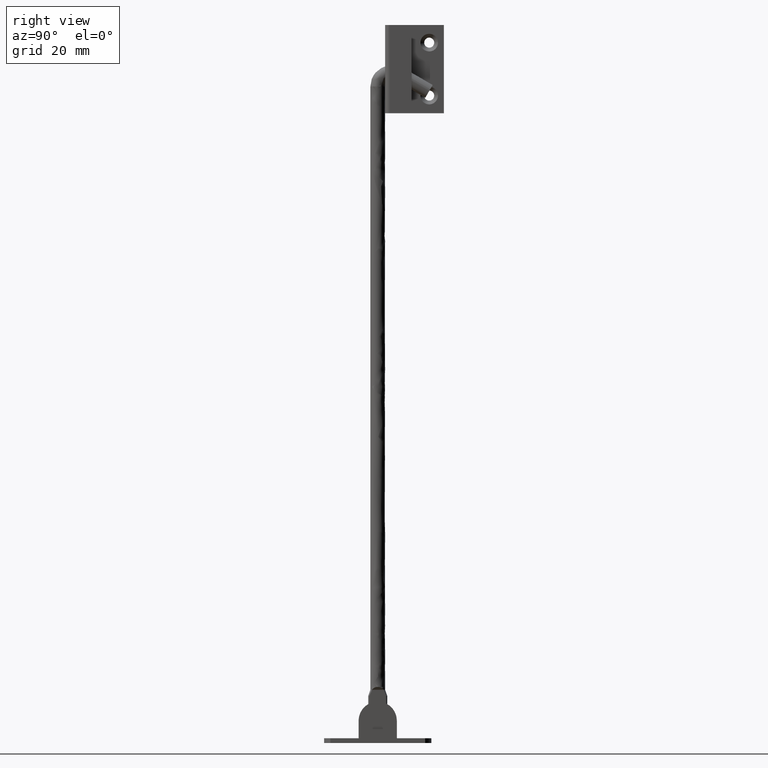
[diagram: clean part render]
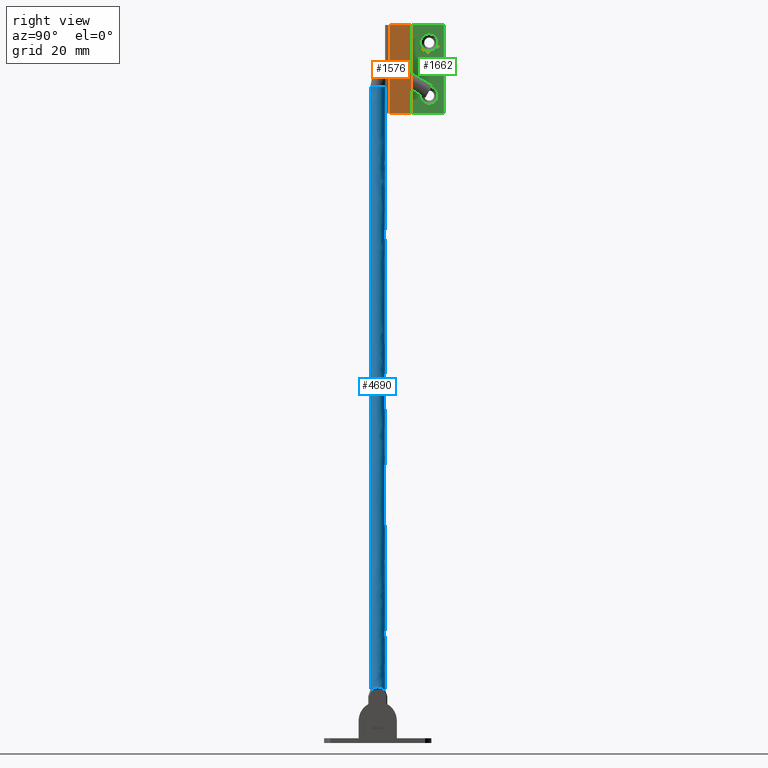
[diagram: same view with three faces highlighted in distinct colors, each labeled with its STEP entity id]
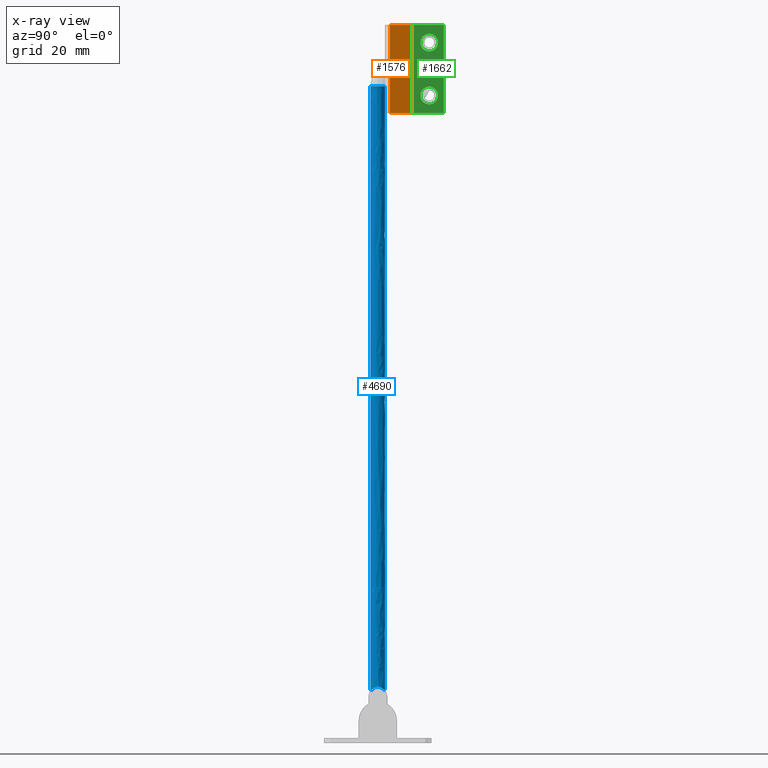
[diagram: x-ray of the same camera — body ghosted, the three highlighted faces saturated]
A machine part, right view with three faces highlighted in distinct colors.
The next image is the same camera in x-ray (body ghosted, the three faces saturated) — at least one of them is partly hidden behind the body in this view.
Their STEP definitions:

[orange] entity #1576 — the highlighted face is a freeform B-spline surface patch.
#1275=CARTESIAN_POINT('',(-2.499999999999885,4.099999999999885,216.662185999999990));
#1276=VERTEX_POINT('',#1275);
#1292=CARTESIAN_POINT('',(-2.499999999999885,4.099999999999885,246.662185999999990));
#1293=VERTEX_POINT('',#1292);
#1294=CARTESIAN_POINT('',(-2.499999999999885,4.099999999999885,246.662185999999990));
#1295=CARTESIAN_POINT('',(-2.499999999999885,4.099999999999885,216.662185999999990));
#1296=QUASI_UNIFORM_CURVE('',1,(#1294,#1295),.UNSPECIFIED.,.F.,.U.);
#1297=EDGE_CURVE('',#1293,#1276,#1296,.T.);
#1402=CARTESIAN_POINT('',(-2.499999999999890,11.500000000000000,246.662185999999990));
#1403=VERTEX_POINT('',#1402);
#1404=CARTESIAN_POINT('',(-2.499999999999885,4.099999999999885,246.662185999999990));
#1405=CARTESIAN_POINT('',(-2.499999999999890,11.500000000000000,246.662185999999990));
#1406=QUASI_UNIFORM_CURVE('',1,(#1404,#1405),.UNSPECIFIED.,.F.,.U.);
#1407=EDGE_CURVE('',#1293,#1403,#1406,.T.);
#1491=CARTESIAN_POINT('',(-2.499999999999890,11.500000000000000,216.662185999999990));
#1492=VERTEX_POINT('',#1491);
#1498=CARTESIAN_POINT('',(-2.499999999999885,4.099999999999885,216.662185999999990));
#1499=CARTESIAN_POINT('',(-2.499999999999890,11.500000000000000,216.662185999999990));
#1500=QUASI_UNIFORM_CURVE('',1,(#1498,#1499),.UNSPECIFIED.,.F.,.U.);
#1501=EDGE_CURVE('',#1276,#1492,#1500,.T.);
#1555=CARTESIAN_POINT('',(-2.499999999999890,11.500000000000000,216.662185999999990));
#1556=CARTESIAN_POINT('',(-2.499999999999890,11.500000000000000,246.662185999999990));
#1557=QUASI_UNIFORM_CURVE('',1,(#1555,#1556),.UNSPECIFIED.,.F.,.U.);
#1558=EDGE_CURVE('',#1492,#1403,#1557,.T.);
#1565=CARTESIAN_POINT('',(-2.499999999999885,3.730369875410705,215.163685494908800));
#1566=CARTESIAN_POINT('',(-2.499999999999885,11.869630190750341,215.163685494908800));
#1567=CARTESIAN_POINT('',(-2.499999999999885,3.730369875410705,248.160686773312190));
#1568=CARTESIAN_POINT('',(-2.499999999999885,11.869630190750341,248.160686773312190));
#1569=B_SPLINE_SURFACE_WITH_KNOTS('',1,1,((#1565,#1567),(#1566,#1568)),.UNSPECIFIED.,.F.,.F.,.U.,(2,2),(2,2),(0.0,8.139260315339632),(0.0,32.997001278403452),.UNSPECIFIED.);
#1570=ORIENTED_EDGE('',*,*,#1407,.F.);
#1571=ORIENTED_EDGE('',*,*,#1297,.T.);
#1572=ORIENTED_EDGE('',*,*,#1501,.T.);
#1573=ORIENTED_EDGE('',*,*,#1558,.T.);
#1574=EDGE_LOOP('',(#1570,#1571,#1572,#1573));
#1575=FACE_OUTER_BOUND('',#1574,.T.);
#1576=ADVANCED_FACE('',(#1575),#1569,.T.);

[blue] entity #4690 — the highlighted face is a freeform B-spline surface patch.
#4449=CARTESIAN_POINT('',(-12.506538458394269,-0.677147938411619,223.233963019317000));
#4450=VERTEX_POINT('',#4449);
#4451=CARTESIAN_POINT('',(-10.159802608272230,-2.499284411889917,223.233963019317000));
#4452=VERTEX_POINT('',#4451);
#4466=CARTESIAN_POINT('',(-12.506525932748589,-0.677144351173064,19.006513389963580));
#4467=VERTEX_POINT('',#4466);
#4468=CARTESIAN_POINT('',(-12.506525932748589,-0.677144351173064,19.006513389963580));
#4469=CARTESIAN_POINT('',(-12.506538458394269,-0.677147938411619,223.233963019317000));
#4470=QUASI_UNIFORM_CURVE('',1,(#4468,#4469),.UNSPECIFIED.,.F.,.U.);
#4471=EDGE_CURVE('',#4467,#4450,#4470,.T.);
#4488=CARTESIAN_POINT('',(-10.159802284641840,-2.499250620640406,18.099990999999850));
#4489=VERTEX_POINT('',#4488);
#4503=CARTESIAN_POINT('',(-10.159802284641840,-2.499250620640406,18.099990999999850));
#4504=CARTESIAN_POINT('',(-10.159802608272230,-2.499284411889917,223.233963019317000));
#4505=QUASI_UNIFORM_CURVE('',1,(#4503,#4504),.UNSPECIFIED.,.F.,.U.);
#4506=EDGE_CURVE('',#4489,#4452,#4505,.T.);
#4511=CARTESIAN_POINT('',(-10.159802606130960,-2.499284411941148,12.971641699395070));
#4512=CARTESIAN_POINT('',(-7.660518194189816,-2.559096018072312,12.971641699395073));
#4513=CARTESIAN_POINT('',(-7.600706588058653,-0.059811606131163,12.971641699395070));
#4514=CARTESIAN_POINT('',(-7.540894981927490,2.439472805809984,12.971641699395073));
#4515=CARTESIAN_POINT('',(-10.040179393868639,2.499284411941147,12.971641699395070));
#4516=CARTESIAN_POINT('',(-12.539463805809785,2.559096018072310,12.971641699395073));
#4517=CARTESIAN_POINT('',(-12.599275411940949,0.059811606131162,12.971641699395070));
#4518=CARTESIAN_POINT('',(-12.608260377495174,-0.315633659495877,12.971641699395075));
#4519=CARTESIAN_POINT('',(-12.506538474837466,-0.677147879973391,12.971641699395068));
#4520=CARTESIAN_POINT('',(-10.159802606130960,-2.499284411941161,228.490521057308400));
#4521=CARTESIAN_POINT('',(-7.660518194189816,-2.559096018072324,228.490521057308400));
#4522=CARTESIAN_POINT('',(-7.600706588058653,-0.059811606131176,228.490521057308400));
#4523=CARTESIAN_POINT('',(-7.540894981927490,2.439472805809972,228.490521057308400));
#4524=CARTESIAN_POINT('',(-10.040179393868639,2.499284411941134,228.490521057308400));
#4525=CARTESIAN_POINT('',(-12.539463805809785,2.559096018072297,228.490521057308400));
#4526=CARTESIAN_POINT('',(-12.599275411940949,0.059811606131149,228.490521057308400));
#4527=CARTESIAN_POINT('',(-12.608260377495174,-0.315633659495890,228.490521057308400));
#4528=CARTESIAN_POINT('',(-12.506538474837466,-0.677147879973404,228.490521057308400));
#4536=(BOUNDED_SURFACE()B_SPLINE_SURFACE(2,1,((#4511,#4520),(#4512,#4521),(#4513,#4522),(#4514,#4523),(#4515,#4524),(#4516,#4525),(#4517,#4526),(#4518,#4527),(#4519,#4528)),.UNSPECIFIED.,.F.,.F.,.U.)B_SPLINE_SURFACE_WITH_KNOTS((3,2,2,2,3),(2,2),(0.0,4.142135623730951,8.284271247461902,12.426406871192849,13.254833995939039),(0.0,215.518879357913310),.UNSPECIFIED.)GEOMETRIC_REPRESENTATION_ITEM()RATIONAL_B_SPLINE_SURFACE(((1.0,1.0),(0.707106781186548,0.707106781186548),(1.0,1.0),(0.707106781186548,0.707106781186548),(1.0,1.0),(0.707106781186548,0.707106781186548),(1.0,1.0),(0.941421356237310,0.941421356237310),(0.906274169979695,0.906274169979695)))REPRESENTATION_ITEM('')SURFACE());
#4537=CARTESIAN_POINT('',(-12.599990999999800,-1.145215E-014,223.233963019317000));
#4538=VERTEX_POINT('',#4537);
#4539=CARTESIAN_POINT('',(-12.599990999999800,-1.145215E-014,223.233963019317000));
#4540=CARTESIAN_POINT('',(-12.599990999999800,-0.345022648237428,223.233963019316950));
#4541=CARTESIAN_POINT('',(-12.506538458394276,-0.677147938411619,223.233963019316970));
#4549=(BOUNDED_CURVE()B_SPLINE_CURVE(2,(#4539,#4540,#4541),.UNSPECIFIED.,.F.,.U.)B_SPLINE_CURVE_WITH_KNOTS((3,3),(0.0,0.046155103984157),.UNSPECIFIED.)CURVE()GEOMETRIC_REPRESENTATION_ITEM()RATIONAL_B_SPLINE_CURVE((1.0,0.945925932117643,0.911818218042938))REPRESENTATION_ITEM(''));
#4550=EDGE_CURVE('',#4538,#4450,#4549,.T.);
#4551=ORIENTED_EDGE('',*,*,#4550,.F.);
#4552=CARTESIAN_POINT('',(-12.290757697685530,1.204384189663384,223.233963024188510));
#4553=VERTEX_POINT('',#4552);
#4554=CARTESIAN_POINT('',(-12.290757697685528,1.204384189663384,223.233963024188570));
#4555=CARTESIAN_POINT('',(-12.599990999999800,0.641890906282471,223.233963019317000));
#4556=CARTESIAN_POINT('',(-12.599990999999800,-1.145215E-014,223.233963019317000));
#4564=(BOUNDED_CURVE()B_SPLINE_CURVE(2,(#4554,#4555,#4556),.UNSPECIFIED.,.F.,.U.)B_SPLINE_CURVE_WITH_KNOTS((3,3),(0.917949183277042,1.0),.UNSPECIFIED.)CURVE()GEOMETRIC_REPRESENTATION_ITEM()RATIONAL_B_SPLINE_CURVE((0.870842360347190,0.903871488734961,1.0))REPRESENTATION_ITEM(''));
#4565=EDGE_CURVE('',#4553,#4538,#4564,.T.);
#4566=ORIENTED_EDGE('',*,*,#4565,.F.);
#4567=CARTESIAN_POINT('',(-8.772283194433499,2.118299313845484,223.233963021946490));
#4568=VERTEX_POINT('',#4567);
#4569=CARTESIAN_POINT('',(-8.772283194433499,2.118299313845484,223.233963021946470));
#4570=CARTESIAN_POINT('',(-9.381269822572053,2.499999999999989,223.233963019317000));
#4571=CARTESIAN_POINT('',(-10.099990999999800,2.499999999999989,223.233963019317000));
#4572=CARTESIAN_POINT('',(-11.578486871707240,2.499999999999989,223.233963019317030));
#4573=CARTESIAN_POINT('',(-12.290757697685528,1.204384189663384,223.233963024188570));
#4581=(BOUNDED_CURVE()B_SPLINE_CURVE(2,(#4569,#4570,#4571,#4572,#4573),.UNSPECIFIED.,.F.,.U.)B_SPLINE_CURVE_WITH_KNOTS((3,2,3),(0.659173270728854,0.750000000000000,0.917949183277042),.UNSPECIFIED.)CURVE()GEOMETRIC_REPRESENTATION_ITEM()RATIONAL_B_SPLINE_CURVE((0.864498809545879,0.893589867637904,1.0,0.803235292451587,0.870842360347190))REPRESENTATION_ITEM(''));
#4582=EDGE_CURVE('',#4568,#4553,#4581,.T.);
#4583=ORIENTED_EDGE('',*,*,#4582,.F.);
#4584=CARTESIAN_POINT('',(-7.599990999999799,-1.145215E-014,223.233963019317000));
#4585=VERTEX_POINT('',#4584);
#4586=CARTESIAN_POINT('',(-7.599990999999799,-1.145215E-014,223.233963019317000));
#4587=CARTESIAN_POINT('',(-7.599990999999799,1.383529921031987,223.233963019317060));
#4588=CARTESIAN_POINT('',(-8.772283194433499,2.118299313845484,223.233963021946470));
#4596=(BOUNDED_CURVE()B_SPLINE_CURVE(2,(#4586,#4587,#4588),.UNSPECIFIED.,.F.,.U.)B_SPLINE_CURVE_WITH_KNOTS((3,3),(0.500000000000000,0.659173270728854),.UNSPECIFIED.)CURVE()GEOMETRIC_REPRESENTATION_ITEM()RATIONAL_B_SPLINE_CURVE((1.0,0.813516913548643,0.864498809545879))REPRESENTATION_ITEM(''));
#4597=EDGE_CURVE('',#4585,#4568,#4596,.T.);
#4598=ORIENTED_EDGE('',*,*,#4597,.F.);
#4599=CARTESIAN_POINT('',(-10.159802608272228,-2.499284411889918,223.233963019317000));
#4600=CARTESIAN_POINT('',(-10.129901085867317,-2.500000000000012,223.233963019317060));
#4601=CARTESIAN_POINT('',(-10.099990999999800,-2.500000000000012,223.233963019317000));
#4602=CARTESIAN_POINT('',(-7.599990999999798,-2.500000000000012,223.233963019316920));
#4603=CARTESIAN_POINT('',(-7.599990999999799,-1.145215E-014,223.233963019317000));
#4611=(BOUNDED_CURVE()B_SPLINE_CURVE(2,(#4599,#4600,#4601,#4602,#4603),.UNSPECIFIED.,.F.,.U.)B_SPLINE_CURVE_WITH_KNOTS((3,2,3),(0.245790933814628,0.250000000000000,0.500000000000000),.UNSPECIFIED.)CURVE()GEOMETRIC_REPRESENTATION_ITEM()RATIONAL_B_SPLINE_CURVE((0.990303591366712,0.995068772227071,1.0,0.707106781186548,1.0))REPRESENTATION_ITEM(''));
#4612=EDGE_CURVE('',#4452,#4585,#4611,.T.);
#4613=ORIENTED_EDGE('',*,*,#4612,.F.);
#4614=ORIENTED_EDGE('',*,*,#4506,.F.);
#4615=CARTESIAN_POINT('',(-8.599990999999790,-1.999926249020900,18.099990999999900));
#4616=VERTEX_POINT('',#4615);
#4617=CARTESIAN_POINT('',(-10.159802284641840,-2.499250620640406,18.099990999999850));
#4618=CARTESIAN_POINT('',(-10.139869293630429,-2.499728263391592,18.099990999999850));
#4619=CARTESIAN_POINT('',(-10.119930567950821,-2.499967168318415,18.099990999999861));
#4620=CARTESIAN_POINT('',(-9.936370542275279,-2.499963562540222,18.099990999999861));
#4621=CARTESIAN_POINT('',(-9.772753345822849,-2.483845788125793,18.099990999999871));
#4622=CARTESIAN_POINT('',(-9.451798728924747,-2.419998936819355,18.099990999999878));
#4623=CARTESIAN_POINT('',(-9.294469244714438,-2.372271438666564,18.099990999999878));
#4624=CARTESIAN_POINT('',(-8.992136596612248,-2.247037762961321,18.099990999999889));
#4625=CARTESIAN_POINT('',(-8.847140908490864,-2.169534682058290,18.099990999999900));
#4626=CARTESIAN_POINT('',(-8.673353600952931,-2.053412667420364,18.099990999999900));
#4627=CARTESIAN_POINT('',(-8.636301664781405,-2.027163603905287,18.099990999999900));
#4628=CARTESIAN_POINT('',(-8.599990999999790,-1.999926249020900,18.099990999999900));
#4629=B_SPLINE_CURVE_WITH_KNOTS('',3,(#4617,#4618,#4619,#4620,#4621,#4622,#4623,#4624,#4625,#4626,#4627,#4628),.UNSPECIFIED.,.F.,.U.,(4,2,2,2,2,4),(0.746191893878265,0.750000000066476,0.781250000066476,0.812500000066476,0.843750000066476,0.852419213163902),.UNSPECIFIED.);
#4630=EDGE_CURVE('',#4489,#4616,#4629,.T.);
#4631=ORIENTED_EDGE('',*,*,#4630,.T.);
#4632=CARTESIAN_POINT('',(-8.599990998929561,1.999926248707810,18.099990999999800));
#4633=VERTEX_POINT('',#4632);
#4634=CARTESIAN_POINT('',(-8.599990999999790,-1.999926249020900,18.099990999999900));
#4635=CARTESIAN_POINT('',(-7.600012586636948,-1.249947160222422,19.099969413162142));
#4636=CARTESIAN_POINT('',(-7.600012586302505,-2.838603E-010,19.099969413162100));
#4637=CARTESIAN_POINT('',(-7.600012585968061,1.249947159654703,19.099969413162075));
#4638=CARTESIAN_POINT('',(-8.599990998929561,1.999926248707810,18.099990999999800));
#4646=(BOUNDED_CURVE()B_SPLINE_CURVE(2,(#4634,#4635,#4636,#4637,#4638),.UNSPECIFIED.,.F.,.U.)B_SPLINE_CURVE_WITH_KNOTS((3,2,3),(0.0,0.500000000000000,1.0),.UNSPECIFIED.)CURVE()GEOMETRIC_REPRESENTATION_ITEM()RATIONAL_B_SPLINE_CURVE((1.0,0.894429604478501,1.0,0.894429604478501,1.0))REPRESENTATION_ITEM(''));
#4647=EDGE_CURVE('',#4616,#4633,#4646,.T.);
#4648=ORIENTED_EDGE('',*,*,#4647,.T.);
#4649=CARTESIAN_POINT('',(-11.599990999999800,1.999926249020900,18.099990999999900));
#4650=VERTEX_POINT('',#4649);
#4651=CARTESIAN_POINT('',(-8.599990998929561,1.999926248707810,18.099990999999800));
#4652=CARTESIAN_POINT('',(-8.636301642765393,2.027162719282474,18.099990999999800));
#4653=CARTESIAN_POINT('',(-8.673353557802727,2.053410890125940,18.099990999999800));
#4654=CARTESIAN_POINT('',(-8.847140766250096,2.169528761003813,18.099990999999800));
#4655=CARTESIAN_POINT('',(-8.992136374378495,2.247028506351112,18.099990999999811));
#4656=CARTESIAN_POINT('',(-9.294468861170405,2.372255455721097,18.099990999999822));
#4657=CARTESIAN_POINT('',(-9.451798264067396,2.419979563260684,18.099990999999829));
#4658=CARTESIAN_POINT('',(-9.772752720139387,2.483819708416776,18.099990999999839));
#4659=CARTESIAN_POINT('',(-9.936369837082980,2.499934167459889,18.099990999999839));
#4660=CARTESIAN_POINT('',(-10.263612162681550,2.499934167425707,18.099990999999850));
#4661=CARTESIAN_POINT('',(-10.427229279625140,2.483819708348413,18.099990999999861));
#4662=CARTESIAN_POINT('',(-10.748183735697131,2.419979563125271,18.099990999999871));
#4663=CARTESIAN_POINT('',(-10.905513138594120,2.372255455552818,18.099990999999878));
#4664=CARTESIAN_POINT('',(-11.207845625386030,2.247028506119674,18.099990999999889));
#4665=CARTESIAN_POINT('',(-11.352841233514431,2.169528760742082,18.099990999999900));
#4666=CARTESIAN_POINT('',(-11.526628441672440,2.053410890021240,18.099990999999900));
#4667=CARTESIAN_POINT('',(-11.563680356430989,2.027162719379177,18.099990999999900));
#4668=CARTESIAN_POINT('',(-11.599990999999800,1.999926249020900,18.099990999999900));
#4669=B_SPLINE_CURVE_WITH_KNOTS('',3,(#4651,#4652,#4653,#4654,#4655,#4656,#4657,#4658,#4659,#4660,#4661,#4662,#4663,#4664,#4665,#4666,#4667,#4668),.UNSPECIFIED.,.F.,.U.,(4,2,2,2,2,2,2,2,4),(0.147580786902571,0.156250000066465,0.187500000066465,0.218750000066465,0.250000000066465,0.281250000066465,0.312500000066465,0.343750000066465,0.352419213163894),.UNSPECIFIED.);
#4670=EDGE_CURVE('',#4633,#4650,#4669,.T.);
#4671=ORIENTED_EDGE('',*,*,#4670,.T.);
#4672=CARTESIAN_POINT('',(-11.599990999999800,1.999926249020900,18.099990999999900));
#4673=CARTESIAN_POINT('',(-12.599974852454608,1.249945629721435,19.099969413124871));
#4674=CARTESIAN_POINT('',(-12.599979616316761,-0.000002870621681,19.099969413092250));
#4675=CARTESIAN_POINT('',(-12.599980931271617,-0.345022476887721,19.099969413083240));
#4676=CARTESIAN_POINT('',(-12.506525932748586,-0.677144351173064,19.006513389963576));
#4684=(BOUNDED_CURVE()B_SPLINE_CURVE(2,(#4672,#4673,#4674,#4675,#4676),.UNSPECIFIED.,.F.,.U.)B_SPLINE_CURVE_WITH_KNOTS((3,2,3),(0.0,0.500000000000000,0.649434850688862),.UNSPECIFIED.)CURVE()GEOMETRIC_REPRESENTATION_ITEM()RATIONAL_B_SPLINE_CURVE((1.0,0.894429604478505,1.0,0.968448207416163,0.955756164487252))REPRESENTATION_ITEM(''));
#4685=EDGE_CURVE('',#4650,#4467,#4684,.T.);
#4686=ORIENTED_EDGE('',*,*,#4685,.T.);
#4687=ORIENTED_EDGE('',*,*,#4471,.T.);
#4688=EDGE_LOOP('',(#4551,#4566,#4583,#4598,#4613,#4614,#4631,#4648,#4671,#4686,#4687));
#4689=FACE_OUTER_BOUND('',#4688,.T.);
#4690=ADVANCED_FACE('',(#4689),#4536,.T.);

[green] entity #1662 — the highlighted face is a freeform B-spline surface patch.
#713=CARTESIAN_POINT('',(-16.099990999129620,20.490752001544791,222.897563293888790));
#714=VERTEX_POINT('',#713);
#720=CARTESIAN_POINT('',(-16.099991000000049,17.500000000000000,225.662185999999990));
#721=VERTEX_POINT('',#720);
#722=CARTESIAN_POINT('',(-16.099991000000049,17.500000000000000,225.662185999999990));
#723=CARTESIAN_POINT('',(-16.099991000000049,20.273171462628433,225.662186000000050));
#724=CARTESIAN_POINT('',(-16.099990999129624,20.490752001544791,222.897563293888790));
#732=(BOUNDED_CURVE()B_SPLINE_CURVE(2,(#722,#723,#724),.UNSPECIFIED.,.F.,.U.)B_SPLINE_CURVE_WITH_KNOTS((3,3),(0.0,0.236331299871936),.UNSPECIFIED.)CURVE()GEOMETRIC_REPRESENTATION_ITEM()RATIONAL_B_SPLINE_CURVE((1.0,0.723120659496565,0.969723354584020))REPRESENTATION_ITEM(''));
#733=EDGE_CURVE('',#721,#714,#732,.T.);
#735=CARTESIAN_POINT('',(-16.099990999129620,14.509247998455210,222.426808706111300));
#736=VERTEX_POINT('',#735);
#737=CARTESIAN_POINT('',(-16.099990999129624,14.509247998455217,222.426808706111300));
#738=CARTESIAN_POINT('',(-16.099991000000053,14.500000000000000,222.544315672309320));
#739=CARTESIAN_POINT('',(-16.099991000000049,14.500000000000000,222.662185999999990));
#740=CARTESIAN_POINT('',(-16.099991000000049,14.500000000000000,225.662185999999990));
#741=CARTESIAN_POINT('',(-16.099991000000049,17.500000000000000,225.662185999999990));
#749=(BOUNDED_CURVE()B_SPLINE_CURVE(2,(#737,#738,#739,#740,#741),.UNSPECIFIED.,.F.,.U.)B_SPLINE_CURVE_WITH_KNOTS((3,2,3),(0.736331299871938,0.750000000000000,1.0),.UNSPECIFIED.)CURVE()GEOMETRIC_REPRESENTATION_ITEM()RATIONAL_B_SPLINE_CURVE((0.969723354584023,0.983986121689984,1.0,0.707106781186548,1.0))REPRESENTATION_ITEM(''));
#750=EDGE_CURVE('',#736,#721,#749,.T.);
#787=CARTESIAN_POINT('',(-16.099991000000049,17.500000000000000,219.662185999999990));
#788=VERTEX_POINT('',#787);
#789=CARTESIAN_POINT('',(-16.099991000000049,17.500000000000000,219.662185999999990));
#790=CARTESIAN_POINT('',(-16.099991000000049,14.726828537371546,219.662186000000100));
#791=CARTESIAN_POINT('',(-16.099990999129624,14.509247998455217,222.426808706111220));
#799=(BOUNDED_CURVE()B_SPLINE_CURVE(2,(#789,#790,#791),.UNSPECIFIED.,.F.,.U.)B_SPLINE_CURVE_WITH_KNOTS((3,3),(0.500000000000000,0.736331299871937),.UNSPECIFIED.)CURVE()GEOMETRIC_REPRESENTATION_ITEM()RATIONAL_B_SPLINE_CURVE((1.0,0.723120659496565,0.969723354584021))REPRESENTATION_ITEM(''));
#800=EDGE_CURVE('',#788,#736,#799,.T.);
#802=CARTESIAN_POINT('',(-16.099990999129624,20.490752001544791,222.897563293888790));
#803=CARTESIAN_POINT('',(-16.099991000000049,20.500000000000004,222.780056327690720));
#804=CARTESIAN_POINT('',(-16.099991000000049,20.500000000000000,222.662185999999990));
#805=CARTESIAN_POINT('',(-16.099991000000049,20.500000000000007,219.662185999999990));
#806=CARTESIAN_POINT('',(-16.099991000000049,17.500000000000000,219.662185999999990));
#814=(BOUNDED_CURVE()B_SPLINE_CURVE(2,(#802,#803,#804,#805,#806),.UNSPECIFIED.,.F.,.U.)B_SPLINE_CURVE_WITH_KNOTS((3,2,3),(0.236331299871936,0.250000000000000,0.500000000000000),.UNSPECIFIED.)CURVE()GEOMETRIC_REPRESENTATION_ITEM()RATIONAL_B_SPLINE_CURVE((0.969723354584020,0.983986121689982,1.0,0.707106781186548,1.0))REPRESENTATION_ITEM(''));
#815=EDGE_CURVE('',#714,#788,#814,.T.);
#1041=CARTESIAN_POINT('',(-16.099990999129620,20.490752001544791,240.897563293888710));
#1042=VERTEX_POINT('',#1041);
#1048=CARTESIAN_POINT('',(-16.099991000000049,17.500000000000000,243.662185999999990));
#1049=VERTEX_POINT('',#1048);
#1050=CARTESIAN_POINT('',(-16.099991000000049,17.500000000000000,243.662185999999990));
#1051=CARTESIAN_POINT('',(-16.099991000000049,20.273171462628461,243.662186000000050));
#1052=CARTESIAN_POINT('',(-16.099990999129620,20.490752001544788,240.897563293888680));
#1060=(BOUNDED_CURVE()B_SPLINE_CURVE(2,(#1050,#1051,#1052),.UNSPECIFIED.,.F.,.U.)B_SPLINE_CURVE_WITH_KNOTS((3,3),(0.0,0.236331299871938),.UNSPECIFIED.)CURVE()GEOMETRIC_REPRESENTATION_ITEM()RATIONAL_B_SPLINE_CURVE((1.0,0.723120659496563,0.969723354584024))REPRESENTATION_ITEM(''));
#1061=EDGE_CURVE('',#1049,#1042,#1060,.T.);
#1063=CARTESIAN_POINT('',(-16.099990999129631,14.509247998455210,240.426808706111300));
#1064=VERTEX_POINT('',#1063);
#1065=CARTESIAN_POINT('',(-16.099990999129624,14.509247998455216,240.426808706111270));
#1066=CARTESIAN_POINT('',(-16.099991000000053,14.500000000000000,240.544315672309270));
#1067=CARTESIAN_POINT('',(-16.099991000000049,14.500000000000000,240.662185999999990));
#1068=CARTESIAN_POINT('',(-16.099991000000049,14.500000000000000,243.662185999999930));
#1069=CARTESIAN_POINT('',(-16.099991000000049,17.500000000000000,243.662185999999990));
#1077=(BOUNDED_CURVE()B_SPLINE_CURVE(2,(#1065,#1066,#1067,#1068,#1069),.UNSPECIFIED.,.F.,.U.)B_SPLINE_CURVE_WITH_KNOTS((3,2,3),(0.736331299871937,0.750000000000000,1.0),.UNSPECIFIED.)CURVE()GEOMETRIC_REPRESENTATION_ITEM()RATIONAL_B_SPLINE_CURVE((0.969723354584022,0.983986121689983,1.0,0.707106781186548,1.0))REPRESENTATION_ITEM(''));
#1078=EDGE_CURVE('',#1064,#1049,#1077,.T.);
#1115=CARTESIAN_POINT('',(-16.099991000000049,17.500000000000000,237.662185999999990));
#1116=VERTEX_POINT('',#1115);
#1117=CARTESIAN_POINT('',(-16.099991000000049,17.500000000000000,237.662185999999990));
#1118=CARTESIAN_POINT('',(-16.099991000000049,14.726828537371546,237.662185999999990));
#1119=CARTESIAN_POINT('',(-16.099990999129624,14.509247998455217,240.426808706111250));
#1127=(BOUNDED_CURVE()B_SPLINE_CURVE(2,(#1117,#1118,#1119),.UNSPECIFIED.,.F.,.U.)B_SPLINE_CURVE_WITH_KNOTS((3,3),(0.500000000000000,0.736331299871937),.UNSPECIFIED.)CURVE()GEOMETRIC_REPRESENTATION_ITEM()RATIONAL_B_SPLINE_CURVE((1.0,0.723120659496565,0.969723354584021))REPRESENTATION_ITEM(''));
#1128=EDGE_CURVE('',#1116,#1064,#1127,.T.);
#1130=CARTESIAN_POINT('',(-16.099990999129624,20.490752001544795,240.897563293888740));
#1131=CARTESIAN_POINT('',(-16.099991000000053,20.500000000000007,240.780056327690720));
#1132=CARTESIAN_POINT('',(-16.099991000000049,20.500000000000000,240.662185999999990));
#1133=CARTESIAN_POINT('',(-16.099991000000049,20.500000000000007,237.662186000000050));
#1134=CARTESIAN_POINT('',(-16.099991000000049,17.500000000000000,237.662185999999990));
#1142=(BOUNDED_CURVE()B_SPLINE_CURVE(2,(#1130,#1131,#1132,#1133,#1134),.UNSPECIFIED.,.F.,.U.)B_SPLINE_CURVE_WITH_KNOTS((3,2,3),(0.236331299871938,0.250000000000000,0.500000000000000),.UNSPECIFIED.)CURVE()GEOMETRIC_REPRESENTATION_ITEM()RATIONAL_B_SPLINE_CURVE((0.969723354584023,0.983986121689984,1.0,0.707106781186548,1.0))REPRESENTATION_ITEM(''));
#1143=EDGE_CURVE('',#1042,#1116,#1142,.T.);
#1423=CARTESIAN_POINT('',(-16.099990999999999,4.099975999999855,246.662185999999990));
#1424=VERTEX_POINT('',#1423);
#1430=CARTESIAN_POINT('',(-16.099990999999999,22.500000000000000,246.662185999999990));
#1431=VERTEX_POINT('',#1430);
#1432=CARTESIAN_POINT('',(-16.099990999999999,4.099975999999855,246.662185999999990));
#1433=CARTESIAN_POINT('',(-16.099990999999999,22.500000000000000,246.662185999999990));
#1434=QUASI_UNIFORM_CURVE('',1,(#1432,#1433),.UNSPECIFIED.,.F.,.U.);
#1435=EDGE_CURVE('',#1424,#1431,#1434,.T.);
#1463=CARTESIAN_POINT('',(-16.099990999999999,22.500000000000000,216.662185999999990));
#1464=VERTEX_POINT('',#1463);
#1470=CARTESIAN_POINT('',(-16.099990999999999,4.099975999999855,216.662185999999990));
#1471=VERTEX_POINT('',#1470);
#1472=CARTESIAN_POINT('',(-16.099990999999999,4.099975999999855,216.662185999999990));
#1473=CARTESIAN_POINT('',(-16.099990999999999,22.500000000000000,216.662185999999990));
#1474=QUASI_UNIFORM_CURVE('',1,(#1472,#1473),.UNSPECIFIED.,.F.,.U.);
#1475=EDGE_CURVE('',#1471,#1464,#1474,.T.);
#1519=CARTESIAN_POINT('',(-16.099990999999999,4.099975999999855,216.662185999999990));
#1520=CARTESIAN_POINT('',(-16.099990999999999,4.099975999999855,246.662185999999990));
#1521=QUASI_UNIFORM_CURVE('',1,(#1519,#1520),.UNSPECIFIED.,.F.,.U.);
#1522=EDGE_CURVE('',#1471,#1424,#1521,.T.);
#1601=CARTESIAN_POINT('',(-16.099990999999999,22.500000000000000,216.662185999999990));
#1602=CARTESIAN_POINT('',(-16.099990999999999,22.500000000000000,246.662185999999990));
#1603=QUASI_UNIFORM_CURVE('',1,(#1601,#1602),.UNSPECIFIED.,.F.,.U.);
#1604=EDGE_CURVE('',#1464,#1431,#1603,.T.);
#1639=CARTESIAN_POINT('',(-16.099990999999999,3.180894836862667,215.163685494908800));
#1640=CARTESIAN_POINT('',(-16.099990999999999,23.419081656664289,215.163685494908800));
#1641=CARTESIAN_POINT('',(-16.099990999999999,3.180894836862666,248.160686773312190));
#1642=CARTESIAN_POINT('',(-16.099990999999999,23.419081656664289,248.160686773312190));
#1643=B_SPLINE_SURFACE_WITH_KNOTS('',1,1,((#1639,#1641),(#1640,#1642)),.UNSPECIFIED.,.F.,.F.,.U.,(2,2),(2,2),(0.0,20.238186819801630),(0.0,32.997001278403452),.UNSPECIFIED.);
#1644=ORIENTED_EDGE('',*,*,#1435,.F.);
#1645=ORIENTED_EDGE('',*,*,#1522,.F.);
#1646=ORIENTED_EDGE('',*,*,#1475,.T.);
#1647=ORIENTED_EDGE('',*,*,#1604,.T.);
#1648=EDGE_LOOP('',(#1644,#1645,#1646,#1647));
#1649=FACE_OUTER_BOUND('',#1648,.T.);
#1650=ORIENTED_EDGE('',*,*,#1128,.T.);
#1651=ORIENTED_EDGE('',*,*,#1078,.T.);
#1652=ORIENTED_EDGE('',*,*,#1061,.T.);
#1653=ORIENTED_EDGE('',*,*,#1143,.T.);
#1654=EDGE_LOOP('',(#1650,#1651,#1652,#1653));
#1655=FACE_BOUND('',#1654,.T.);
#1656=ORIENTED_EDGE('',*,*,#800,.T.);
#1657=ORIENTED_EDGE('',*,*,#750,.T.);
#1658=ORIENTED_EDGE('',*,*,#733,.T.);
#1659=ORIENTED_EDGE('',*,*,#815,.T.);
#1660=EDGE_LOOP('',(#1656,#1657,#1658,#1659));
#1661=FACE_BOUND('',#1660,.T.);
#1662=ADVANCED_FACE('',(#1649,#1655,#1661),#1643,.T.);